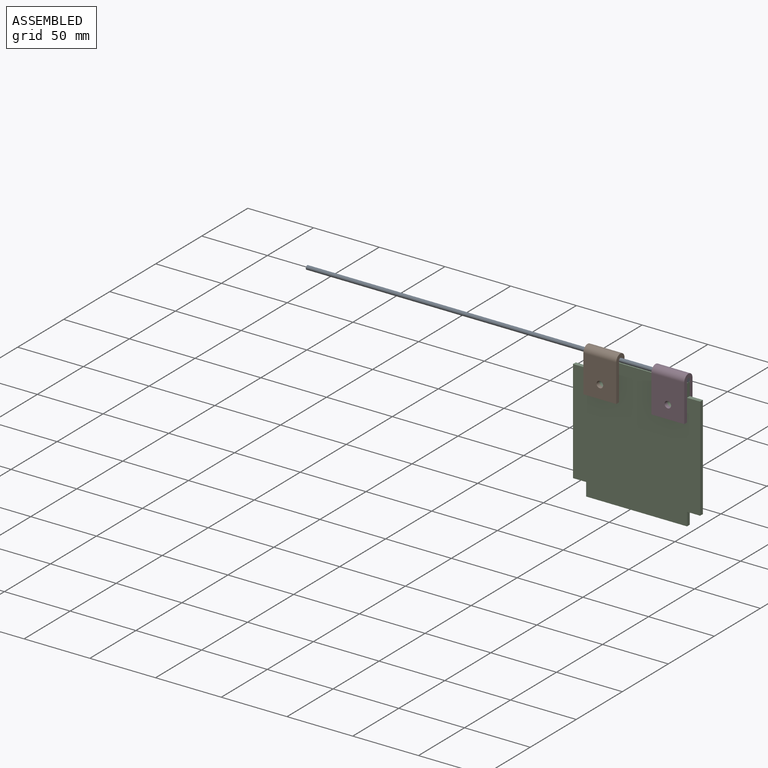
[diagram: assembled view]
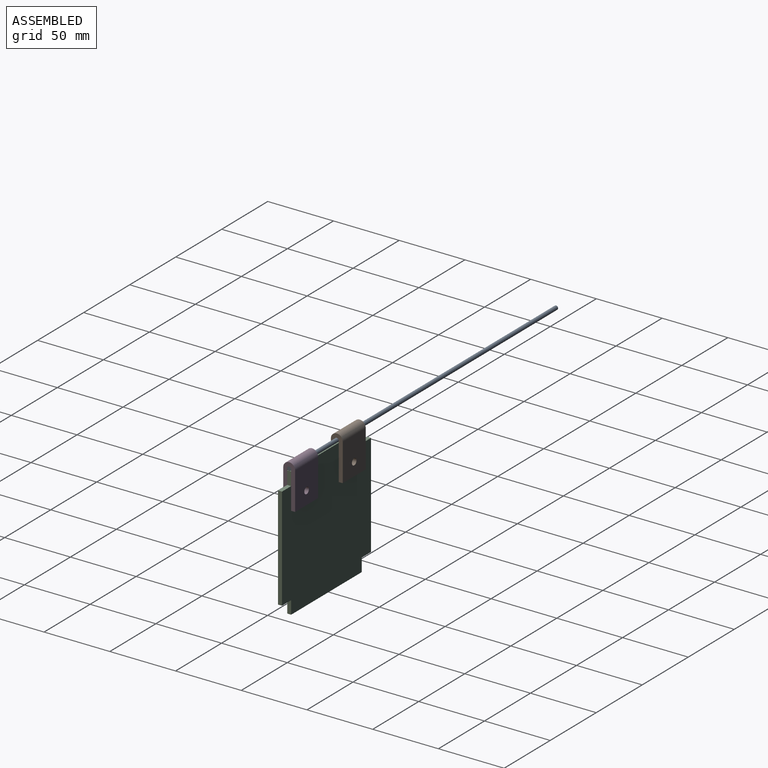
[diagram: assembled view, second angle]
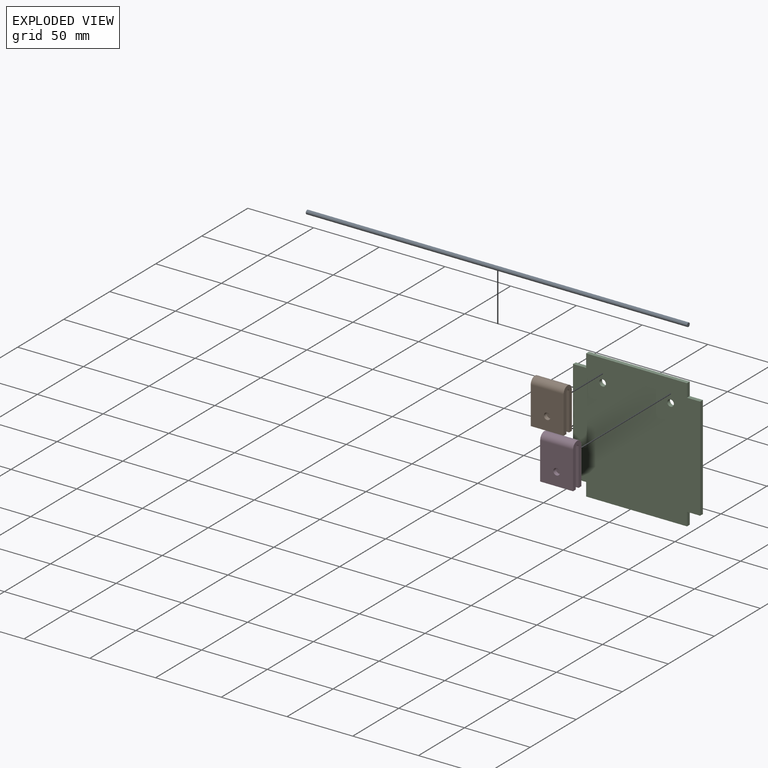
[diagram: exploded view]
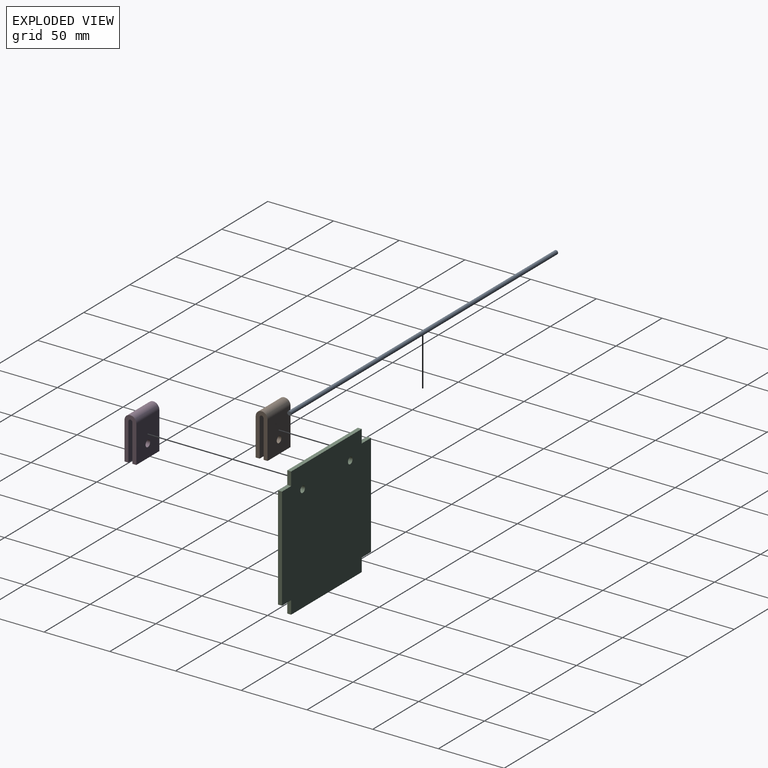
[diagram: exploded view, second angle]
ASSEMBLY  parts=4 mates=3
PART A: 3 faces, bbox 290x3x3 mm
  f0: cylinder r=1.5mm len=290mm, axis (-1,0,0), area 2733.2mm2, adj f1,f2
  f1: plane 3x3mm, normal (1,0,0), area 7.1mm2, adj f0
  f2: plane 3x3mm, normal (-1,0,0), area 7.1mm2, adj f0
PART B: 12 faces, bbox 25x9x33 mm
  f0: cylinder r=1.5mm len=25mm, axis (-1,0,0), area 117.8mm2, adj f1,f7,f8,f9
  f1: plane 28.5x25mm, normal (0,-1,0), area 692.9mm2, adj f0,f2,f8,f9,f11
  f2: plane 25x3mm, normal (0,0,-1), area 75mm2, adj f1,f3,f8,f9
  f3: plane 28.5x25mm, normal (0,1,0), area 692.9mm2, adj f2,f4,f8,f9,f11
  f4: cylinder r=4.5mm len=25mm, axis (-1,0,0), area 353.4mm2, adj f3,f5,f8,f9
  f5: plane 28.5x25mm, normal (0,-1,0), area 692.9mm2, adj f4,f6,f8,f9,f10
  f6: plane 25x3mm, normal (0,0,-1), area 75mm2, adj f5,f7,f8,f9
  f7: plane 28.5x25mm, normal (0,1,0), area 692.9mm2, adj f0,f6,f8,f9,f10
  f8: plane 33x9mm, normal (1,0,0), area 199.3mm2, adj f0,f1,f2,f3,f4,f5,f6,f7
  f9: plane 33x9mm, normal (-1,0,0), area 199.3mm2, adj f0,f1,f2,f3,f4,f5,f6,f7
  f10: cylinder r=2.5mm len=5mm, axis (0,-1,0), area 47.1mm2, adj f5,f7
  f11: cylinder r=2.5mm len=5mm, axis (0,-1,0), area 47.1mm2, adj f1,f3
PART C: 16 faces, bbox 96.7x3x98.4 mm
  f0: plane 76.71x3mm, normal (0,0,1), area 230.1mm2, adj f1,f13,f14,f15
  f1: plane 10x3mm, normal (-1,0,0), area 30mm2, adj f0,f2,f14,f15
  f2: plane 10x3mm, normal (0,0,1), area 30mm2, adj f1,f3,f14,f15
  f3: plane 78.45x3mm, normal (-1,0,0), area 235.3mm2, adj f2,f4,f14,f15
  f4: plane 10x3mm, normal (0,0,-1), area 30mm2, adj f3,f5,f14,f15
  f5: plane 10x3mm, normal (-1,0,0), area 30mm2, adj f4,f6,f14,f15
  f6: plane 76.71x3mm, normal (0,0,-1), area 230.1mm2, adj f5,f7,f14,f15
  f7: plane 10x3mm, normal (1,0,0), area 30mm2, adj f6,f8,f14,f15
  f8: plane 10x3mm, normal (0,0,-1), area 30mm2, adj f7,f9,f14,f15
  f9: plane 78.45x3mm, normal (1,0,0), area 235.3mm2, adj f8,f10,f14,f15
  f10: plane 10x3mm, normal (0,0,1), area 30mm2, adj f9,f13,f14,f15
  f11: cylinder r=2.5mm len=5mm, axis (0,1,0), area 47.1mm2, adj f14,f15
  f12: cylinder r=2.5mm len=5mm, axis (0,1,0), area 47.1mm2, adj f14,f15
  f13: plane 10x3mm, normal (1,0,0), area 30mm2, adj f0,f10,f14,f15
  f14: plane 98.45x96.71mm, normal (0,-1,0), area 9081.6mm2, adj f0,f1,f2,f3,f4,f5,f6,f7
  f15: plane 98.45x96.71mm, normal (0,1,0), area 9081.6mm2, adj f0,f1,f2,f3,f4,f5,f6,f7
PART D: same geometry as B
PLACE A t=(-240.85,-34.13,56.62)mm
PLACE B t=(-27.56,-34.13,43.12)mm
PLACE C t=(10.79,-32.63,5.9)mm
PLACE D t=(24.15,-34.13,43.12)mm
MATE fastened D.f10 <-> C.f11  axis (0,1,0) through (36.65,-35.63,38.12)mm
MATE fastened A.f0 <-> D.f0  axis (1,0,0) through (49.15,-34.13,56.62)mm
MATE fastened B.f10 <-> C.f12  axis (0,1,0) through (-15.06,-35.63,38.12)mm
